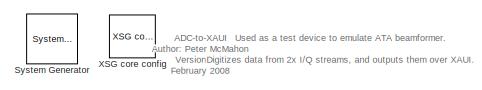
[diagram: root canvas - part 1/3, top left region]
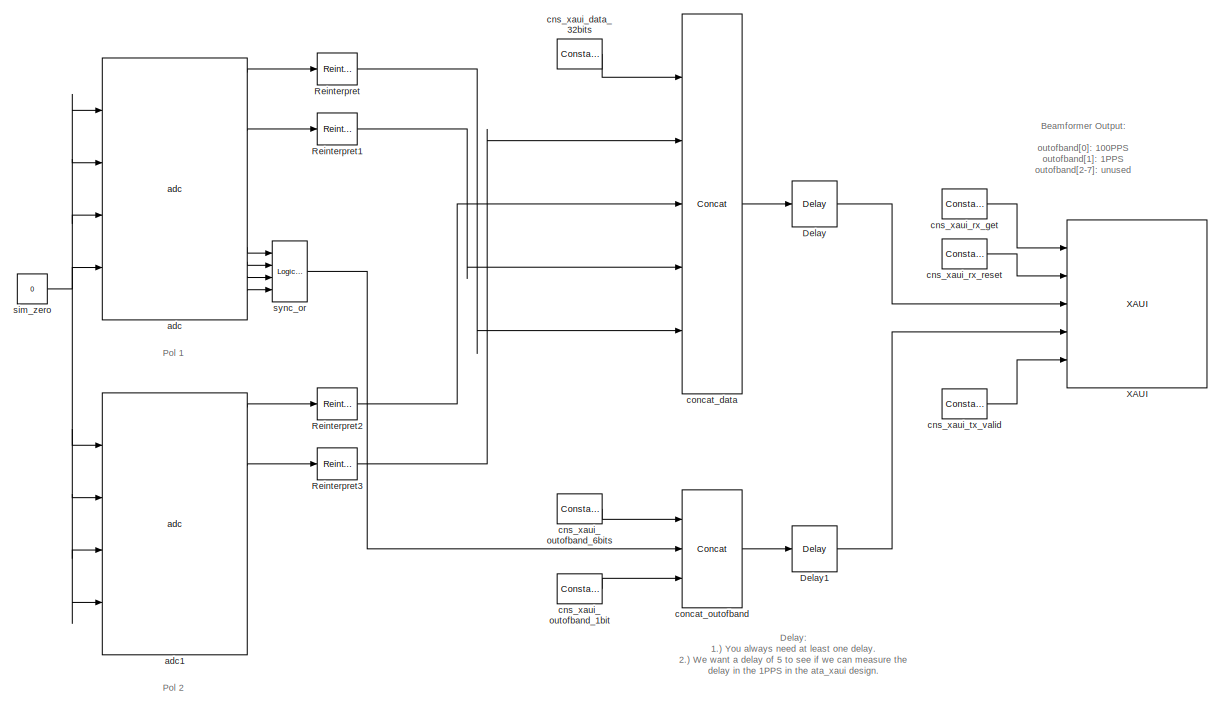
[diagram: root canvas - part 2/3, top left region]
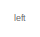
[diagram: root canvas - part 3/3, bottom right region]
MODEL adc_to_xaui
KIND model
BLOCK [Reference]  System Generator  REF=xbsIndex_r3/ System Generator
  AttributesFormatString = System\\nGenerator
  Ports = []
  ShowPortLabels = on
  SourceBlock = xbsIndex_r3/ System Generator
  SourceType = Xilinx System Generator
  Tag = genX
  UserData = DataTag0
  UserDataPersistent = on
  core_generation = According to Block Masks
  dbl_ovrd = According to Block Masks
  deprecated_control = off
  directory = ./adc_to_xaui/sysgen
  eval_field = 0
  incr_netlist = off
  package = ff1152
  part = xc2vp50
  run_coregen = off
  simulink_period = 1
  speed = -7
  synthesis_tool = XST
  sysclk_period = 8
  testbench = off
  trim_vbits = Everywhere in SubSystem
  xilinxfamily = Virtex2P
BLOCK [Reference] Delay  REF=xbsIndex_r3/Delay
  Ports = [1, 1]
  SourceBlock = xbsIndex_r3/Delay
  SourceType = Xilinx Delay Block
  accept_only_valid = off
  dbl_ovrd = off
  en = off
  explicit_period = off
  init_zero = on
  latency = 5
  period = 1
  reg_retiming = off
  show_param = off
  xl_area = [0, 0, 0, 0, 0, 0, 0]
  xl_use_area = off
BLOCK [Reference] Delay1  REF=xbsIndex_r3/Delay
  Ports = [1, 1]
  SourceBlock = xbsIndex_r3/Delay
  SourceType = Xilinx Delay Block
  accept_only_valid = off
  dbl_ovrd = off
  en = off
  explicit_period = off
  init_zero = on
  latency = 5
  period = 1
  reg_retiming = off
  show_param = off
  xl_area = [0, 0, 0, 0, 0, 0, 0]
  xl_use_area = off
BLOCK [Reference] Reinterpret  REF=xbsIndex_r3/Reinterpret
  Ports = [1, 1]
  SourceBlock = xbsIndex_r3/Reinterpret
  SourceType = Xilinx Type Reinterpreting Block
  arith_type = Unsigned
  bin_pt = 0
  force_arith_type = on
  force_bin_pt = on
  force_valid = on
BLOCK [Reference] Reinterpret1  REF=xbsIndex_r3/Reinterpret
  Ports = [1, 1]
  SourceBlock = xbsIndex_r3/Reinterpret
  SourceType = Xilinx Type Reinterpreting Block
  arith_type = Unsigned
  bin_pt = 0
  force_arith_type = on
  force_bin_pt = on
  force_valid = on
BLOCK [Reference] Reinterpret2  REF=xbsIndex_r3/Reinterpret
  Ports = [1, 1]
  SourceBlock = xbsIndex_r3/Reinterpret
  SourceType = Xilinx Type Reinterpreting Block
  arith_type = Unsigned
  bin_pt = 0
  force_arith_type = on
  force_bin_pt = on
  force_valid = on
BLOCK [Reference] Reinterpret3  REF=xbsIndex_r3/Reinterpret
  Ports = [1, 1]
  SourceBlock = xbsIndex_r3/Reinterpret
  SourceType = Xilinx Type Reinterpreting Block
  arith_type = Unsigned
  bin_pt = 0
  force_arith_type = on
  force_bin_pt = on
  force_valid = on
BLOCK [Reference] XAUI  REF=xps_library/XAUI  (lib defined in mdl_00b5cec29cd0, mdl_02ab6ecaa3d1, +5 more)
  Ports = [5, 7]
  ShowPortLabels = on
  SourceBlock = xps_library/XAUI
  SourceType = xaui
  Tag = xps:xaui
  demux = 1
  port = iBOB:1
  pre_emph = 2
  show_param = on
  swing = 800
BLOCK [Reference] XSG core config  REF=xps_library/XSG core config  (lib defined in mdl_00b5cec29cd0, mdl_02ab6ecaa3d1, +5 more)
  Ports = []
  ShowPortLabels = on
  SourceBlock = xps_library/XSG core config
  SourceType = xsg core config
  Tag = xps:xsg
  clk_rate = 125
  clk_src = adc0_clk
  gpio_clk_bit_index = 0
  gpio_clk_io_group = iBOB:sma
  hw_sys = iBOB
  ibob_linux = off
  mpc_type = powerpc405
  sample_period = 1
  synthesis_tool = XST
BLOCK [Reference] adc  REF=xps_library/adc  (lib defined in mdl_00b5cec29cd0, mdl_02ab6ecaa3d1, +5 more)
  Ports = [4, 17]
  ShowPortLabels = on
  SourceBlock = xps_library/adc
  SourceType = adc
  Tag = xps:adc
  adc_brd = iBOB:adc0
  adc_clk_rate = 500
  adc_interleave = off
  sample_period = 1
BLOCK [Reference] adc1  REF=xps_library/adc  (lib defined in mdl_00b5cec29cd0, mdl_02ab6ecaa3d1, +5 more)
  Ports = [4, 17]
  ShowPortLabels = on
  SourceBlock = xps_library/adc
  SourceType = adc
  Tag = xps:adc
  adc_brd = iBOB:adc1
  adc_clk_rate = 500
  adc_interleave = off
  sample_period = 1
BLOCK [Reference] cns_xaui_data_32bits  REF=xbsIndex_r3/Constant
  Ports = [0, 1]
  SourceBlock = xbsIndex_r3/Constant
  SourceType = Xilinx Constant Block
  arith_type = Unsigned
  bin_pt = 0
  carry = CIN
  const = 0
  dbl_ovrd = off
  equ = P=C
  explicit_period = on
  inp1 = P
  inp2 = PCIN>>17
  iostate = 0
  n_bits = 32
  opr = +
  opselect = C
  period = 1
BLOCK [Reference] cns_xaui_outofband_1bit  REF=xbsIndex_r3/Constant
  Ports = [0, 1]
  SourceBlock = xbsIndex_r3/Constant
  SourceType = Xilinx Constant Block
  arith_type = Unsigned
  bin_pt = 0
  carry = CIN
  const = 0
  dbl_ovrd = off
  equ = P=C
  explicit_period = on
  inp1 = P
  inp2 = PCIN>>17
  iostate = 0
  n_bits = 1
  opr = +
  opselect = C
  period = 1
BLOCK [Reference] cns_xaui_outofband_6bits  REF=xbsIndex_r3/Constant
  Ports = [0, 1]
  SourceBlock = xbsIndex_r3/Constant
  SourceType = Xilinx Constant Block
  arith_type = Unsigned
  bin_pt = 0
  carry = CIN
  const = 0
  dbl_ovrd = off
  equ = P=C
  explicit_period = on
  inp1 = P
  inp2 = PCIN>>17
  iostate = 0
  n_bits = 6
  opr = +
  opselect = C
  period = 1
BLOCK [Reference] cns_xaui_rx_get  REF=xbsIndex_r3/Constant
  Ports = [0, 1]
  SourceBlock = xbsIndex_r3/Constant
  SourceType = Xilinx Constant Block
  arith_type = Boolean
  bin_pt = 0
  carry = CIN
  const = 1
  dbl_ovrd = off
  equ = P=C
  explicit_period = on
  inp1 = P
  inp2 = PCIN>>17
  iostate = 0
  n_bits = 1
  opr = +
  opselect = C
  period = 1
BLOCK [Reference] cns_xaui_rx_reset  REF=xbsIndex_r3/Constant
  Ports = [0, 1]
  SourceBlock = xbsIndex_r3/Constant
  SourceType = Xilinx Constant Block
  arith_type = Boolean
  bin_pt = 0
  carry = CIN
  const = 0
  dbl_ovrd = off
  equ = P=C
  explicit_period = on
  inp1 = P
  inp2 = PCIN>>17
  iostate = 0
  n_bits = 1
  opr = +
  opselect = C
  period = 1
BLOCK [Reference] cns_xaui_tx_valid  REF=xbsIndex_r3/Constant
  Ports = [0, 1]
  SourceBlock = xbsIndex_r3/Constant
  SourceType = Xilinx Constant Block
  arith_type = Boolean
  bin_pt = 0
  carry = CIN
  const = 1
  dbl_ovrd = off
  equ = P=C
  explicit_period = on
  inp1 = P
  inp2 = PCIN>>17
  iostate = 0
  n_bits = 8
  opr = +
  opselect = C
  period = 1
BLOCK [Reference] concat_data  REF=xbsIndex_r3/Concat
  Ports = [5, 1]
  SourceBlock = xbsIndex_r3/Concat
  SourceType = Xilinx Bus Concatenator
  dbl_ovrd = off
  explicit_period = off
  num_inputs = 5
  period = 1
BLOCK [Reference] concat_outofband  REF=xbsIndex_r3/Concat
  Ports = [3, 1]
  SourceBlock = xbsIndex_r3/Concat
  SourceType = Xilinx Bus Concatenator
  dbl_ovrd = off
  explicit_period = off
  num_inputs = 3
  period = 1
BLOCK [Constant] sim_zero
  Value = 0
BLOCK [Reference] sync_or  REF=xbsIndex_r3/Logical
  Ports = [4, 1]
  SourceBlock = xbsIndex_r3/Logical
  SourceType = Xilinx Logical Block
  align_bp = on
  arith_type = Unsigned
  bin_pt = 2
  dbl_ovrd = off
  en = off
  explicit_period = off
  inputs = 4
  latency = 1
  logical_function = OR
  n_bits = 8
  period = 1
  precision = Full
  show_param = off
  xl_area = [0, 0, 0, 0, 0, 0, 0]
  xl_use_area = off
ANNOTATION (root): ADC-to-XAUI\nAuthor: Peter McMahon\nVersion: 1.0\nFebruary 2008
ANNOTATION (root): Beamformer Output:\n\noutofband[0]: 100PPS\noutofband[1]: 1PPS\noutofband[2-7]: unused\n\ndata[0-7]: Pol 1 I\ndata[8-15]: Pol 1 Q\ndata[16-23]: Pol 2 I\ndata[24-31]: Pol 2 Q\ndata[31-63]: unused
ANNOTATION (root): Delay:\n1.) You always need at least one delay.\n2.) We want a delay of 5 to see if we can measure the\ndelay in the 1PPS in the ata_xaui design.
ANNOTATION (root): Pol 1
ANNOTATION (root): Pol 2
ANNOTATION (root): Used as a test device to emulate ATA beamformer.\n\nDigitizes data from 2x I/Q streams, and outputs them over XAUI.
ANNOTATION (root): left
LINE Delay1:1 -> XAUI:4
LINE Delay:1 -> XAUI:3
LINE Reinterpret1:1 -> concat_data:4
LINE Reinterpret2:1 -> concat_data:3
LINE Reinterpret3:1 -> concat_data:2
LINE Reinterpret:1 -> concat_data:5
LINE adc1:1 -> Reinterpret2:1
LINE adc1:5 -> Reinterpret3:1
LINE adc:1 -> Reinterpret:1
LINE adc:13 -> sync_or:1
LINE adc:14 -> sync_or:2
LINE adc:15 -> sync_or:3
LINE adc:16 -> sync_or:4
LINE adc:5 -> Reinterpret1:1
LINE cns_xaui_data_32bits:1 -> concat_data:1
LINE cns_xaui_outofband_1bit:1 -> concat_outofband:3
LINE cns_xaui_outofband_6bits:1 -> concat_outofband:1
LINE cns_xaui_rx_get:1 -> XAUI:1
LINE cns_xaui_rx_reset:1 -> XAUI:2
LINE cns_xaui_tx_valid:1 -> XAUI:5
LINE concat_data:1 -> Delay:1
LINE concat_outofband:1 -> Delay1:1
NET sim_zero:1 -> adc1:1, adc1:2, adc1:3, adc1:4, adc:1, adc:2, adc:3, adc:4
LINE sync_or:1 -> concat_outofband:2
note: NET lines group one-source signal fan-out (src -> all destinations, sorted); 1:1 wires keep LINE
